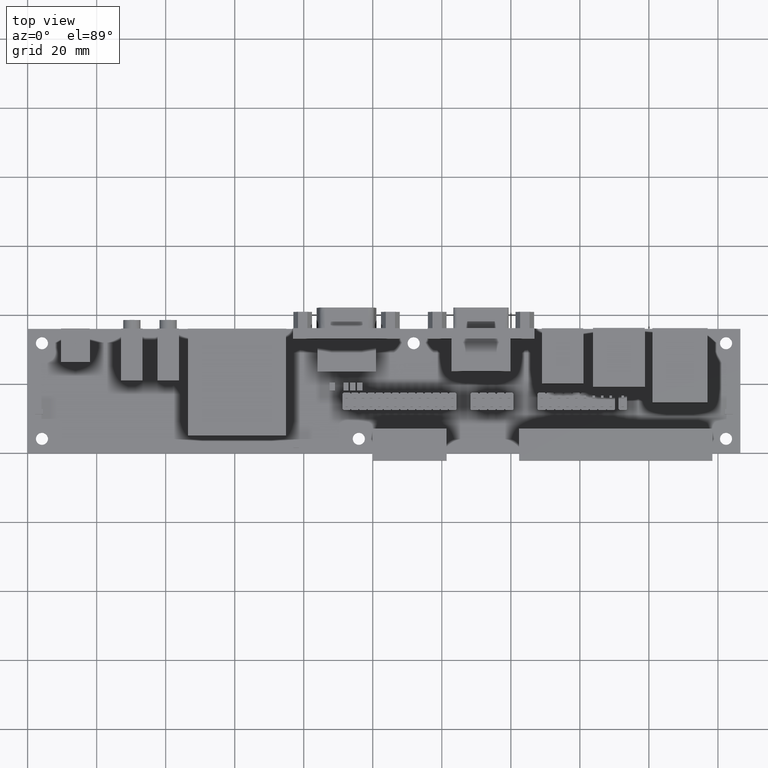
[diagram: clean part render]
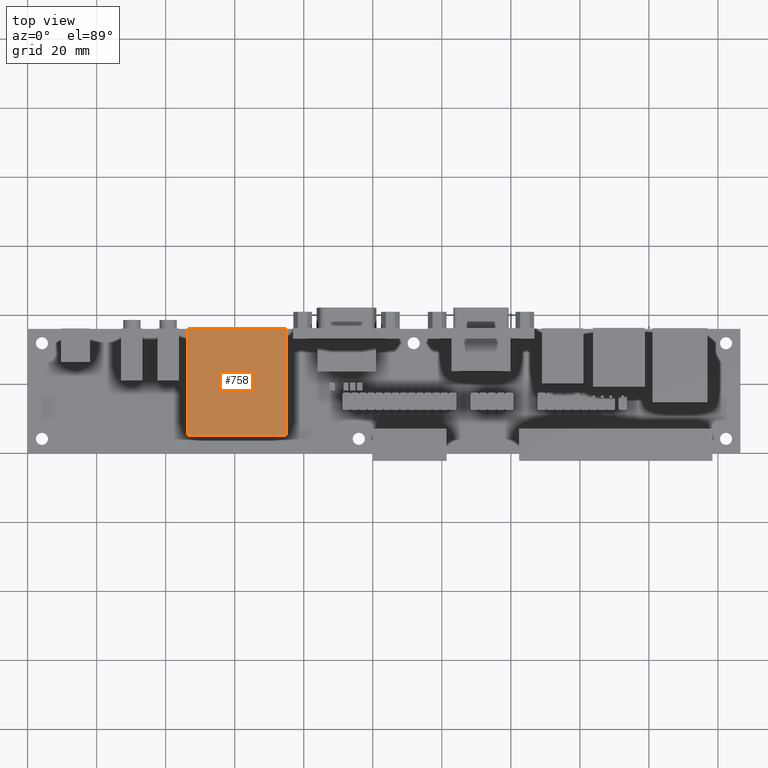
[diagram: same view with one face highlighted and labeled with its STEP entity id]
A machine part, top view. The second image highlights one B-rep face of the part: STEP entity #758.
In plain terms, the highlighted planar face has unit normal (0, 0, 1).
Its self-contained STEP definition (entity closure, byte-faithful):
#758=ADVANCED_FACE($,(#1638),#10484,.T.);
#1638=FACE_OUTER_BOUND($,#2519,.T.);
#2519=EDGE_LOOP($,(#4648,#4649,#4650,#4651));
#4648=ORIENTED_EDGE($,*,*,#7710,.F.);
#4649=ORIENTED_EDGE($,*,*,#7709,.F.);
#4650=ORIENTED_EDGE($,*,*,#7708,.F.);
#4651=ORIENTED_EDGE($,*,*,#7707,.F.);
#7707=EDGE_CURVE($,#9376,#9377,#11743,.T.);
#7708=EDGE_CURVE($,#9377,#9378,#11744,.T.);
#7709=EDGE_CURVE($,#9378,#9379,#11745,.T.);
#7710=EDGE_CURVE($,#9379,#9376,#11746,.T.);
#9376=VERTEX_POINT($,#17532);
#9377=VERTEX_POINT($,#17533);
#9378=VERTEX_POINT($,#17534);
#9379=VERTEX_POINT($,#17535);
#10484=PLANE($,#13228);
#11743=B_SPLINE_CURVE_WITH_KNOTS($,1,(#17506,#17507),.UNSPECIFIED.,.F.,.F.,
(2,2),(0.,26.5),.UNSPECIFIED.);
#11744=B_SPLINE_CURVE_WITH_KNOTS($,1,(#17508,#17509),.UNSPECIFIED.,.F.,.F.,
(2,2),(0.,20.8),.UNSPECIFIED.);
#11745=B_SPLINE_CURVE_WITH_KNOTS($,1,(#17510,#17511),.UNSPECIFIED.,.F.,.F.,
(2,2),(0.,26.5),.UNSPECIFIED.);
#11746=B_SPLINE_CURVE_WITH_KNOTS($,1,(#17512,#17513),.UNSPECIFIED.,.F.,.F.,
(2,2),(0.,20.8),.UNSPECIFIED.);
#13228=AXIS2_PLACEMENT_3D($,#17527,#13956,$);
#13956=DIRECTION($,(0.,0.,1.));
#17506=CARTESIAN_POINT($,(46.4,5.,6.4));
#17507=CARTESIAN_POINT($,(46.4,36.,6.4));
#17508=CARTESIAN_POINT($,(46.4,36.,6.4));
#17509=CARTESIAN_POINT($,(74.9,36.,6.4));
#17510=CARTESIAN_POINT($,(74.9,36.,6.4));
#17511=CARTESIAN_POINT($,(74.9,5.,6.4));
#17512=CARTESIAN_POINT($,(74.9,5.,6.4));
#17513=CARTESIAN_POINT($,(46.4,5.,6.4));
#17527=CARTESIAN_POINT($,(46.4,5.,6.4));
#17532=CARTESIAN_POINT($,(46.4,5.,6.4));
#17533=CARTESIAN_POINT($,(46.4,36.,6.4));
#17534=CARTESIAN_POINT($,(74.9,36.,6.4));
#17535=CARTESIAN_POINT($,(74.9,5.,6.4));